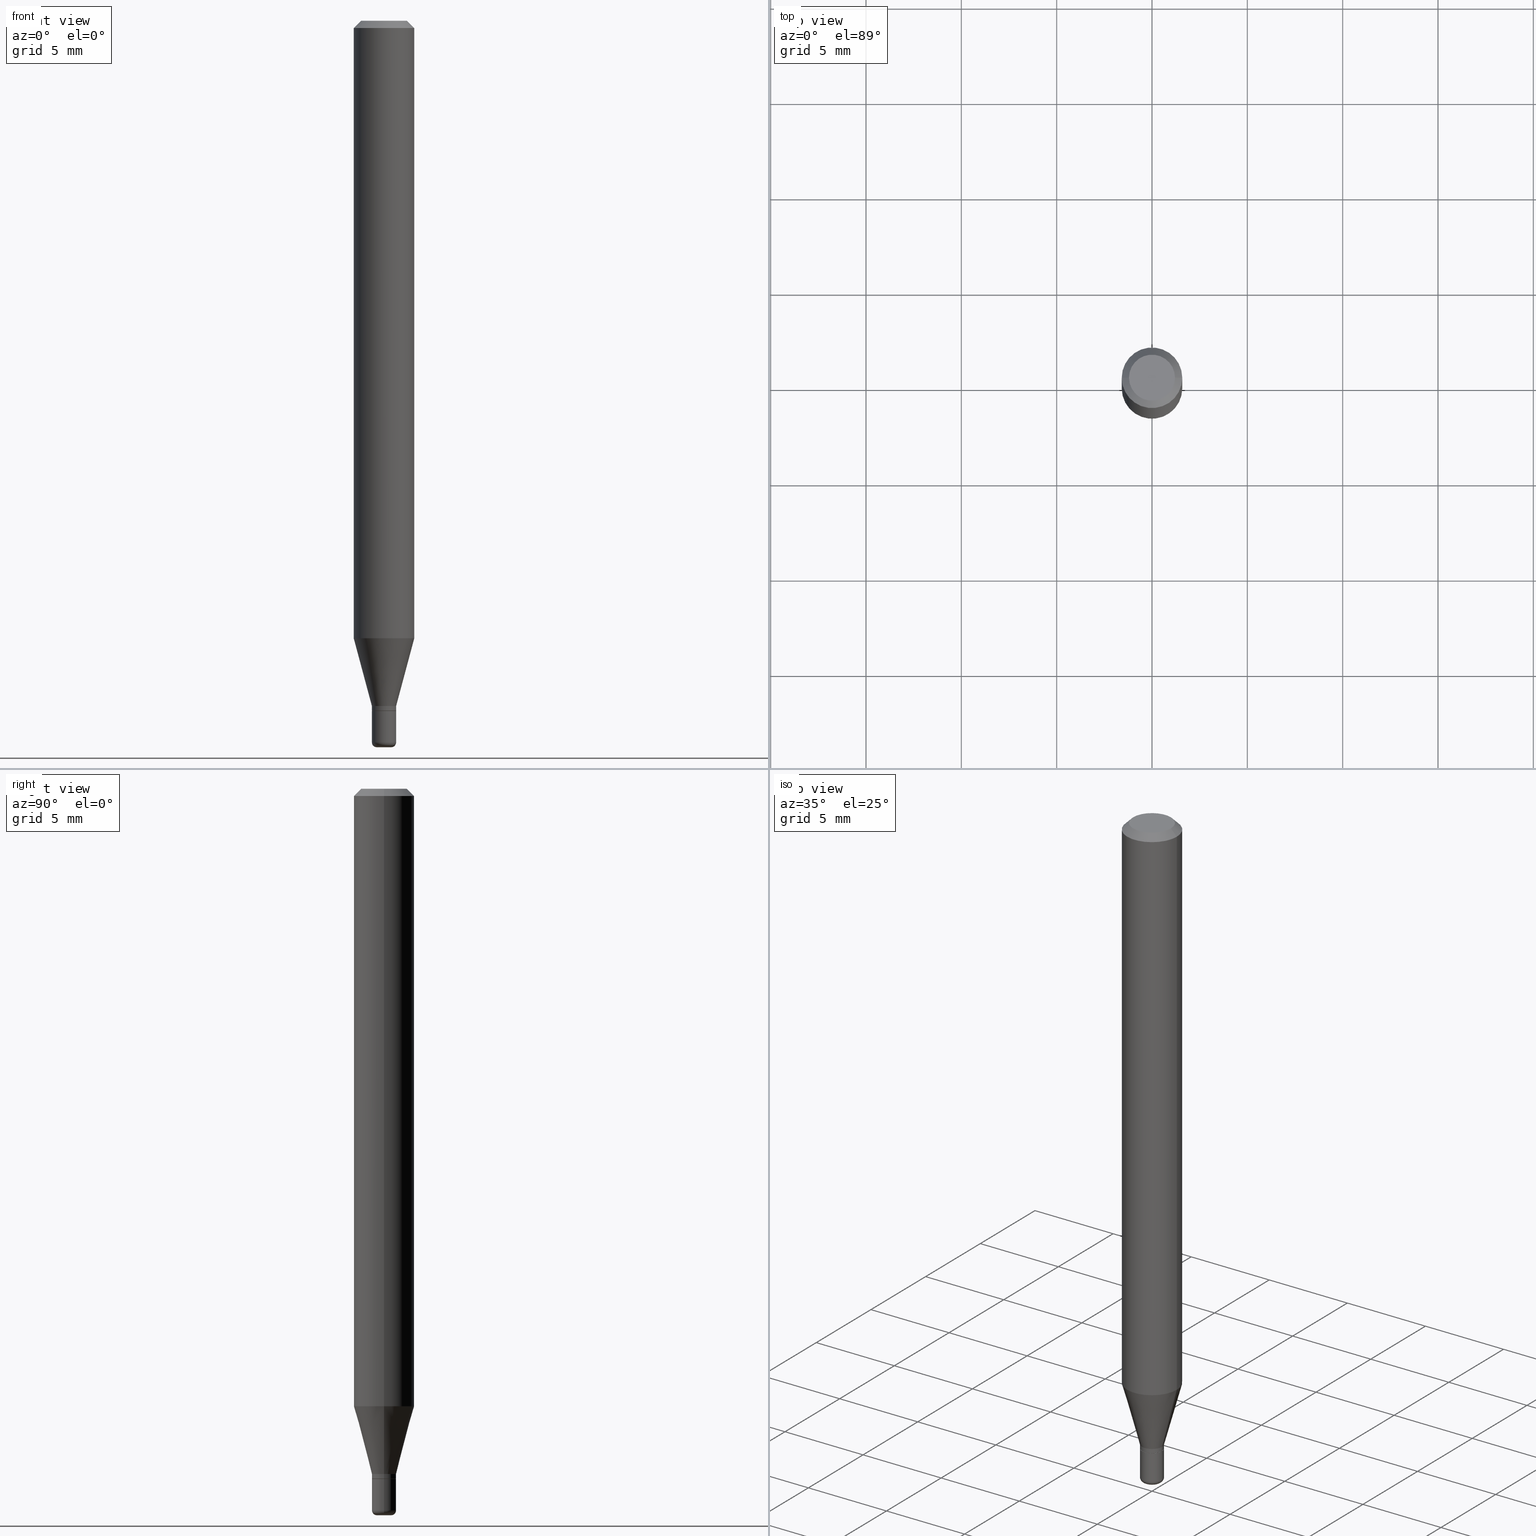
[diagram: canonical four-view strip — front | top / right | iso, engineering-drawing reading convention]
A machine part, canonical four-view strip (front | top / right | iso — engineering-drawing reading convention). The complete STEP part file that produces these views, byte-faithful:
ISO-10303-21;
HEADER;
FILE_DESCRIPTION (( 'STEP AP203' ),
    '1' );
FILE_NAME ('09148.STEP',
    '2024-02-29T22:40:19',
    ( '' ),
    ( '' ),
    'SwSTEP 2.0',
    'SolidWorks 2023',
    '' );
FILE_SCHEMA (( 'CONFIG_CONTROL_DESIGN' ));
ENDSEC;

DATA;
#1 = PRODUCT ( '09148', '09148', '', ( #185 ) ) ;
#2 = CARTESIAN_POINT ( 'NONE',  ( 3.484793048813820547E-29, -4.975360907851483175E-15, -1.425000000000000266 ) ) ;
#3 = FACE_OUTER_BOUND ( 'NONE', #350, .T. ) ;
#4 = EDGE_CURVE ( 'NONE', #430, #230, #403, .T. ) ;
#5 = ORIENTED_EDGE ( 'NONE', *, *, #426, .F. ) ;
#6 = LINE ( 'NONE', #12, #461 ) ;
#7 = CIRCLE ( 'NONE', #354, 0.01500000000000000465 ) ;
#8 = AXIS2_PLACEMENT_3D ( 'NONE', #299, #339, #62 ) ;
#9 = ORIENTED_EDGE ( 'NONE', *, *, #123, .F. ) ;
#10 = CARTESIAN_POINT ( 'NONE',  ( 1.745740669421915009E-16, 0.02499999999999502620, -1.425000000000000266 ) ) ;
#11 = ORIENTED_EDGE ( 'NONE', *, *, #110, .F. ) ;
#12 = CARTESIAN_POINT ( 'NONE',  ( -0.02449999999999996972, -4.801277937590258869E-15, -1.425000000000000266 ) ) ;
#13 = DIRECTION ( 'NONE',  ( 7.105427357601001859E-15, 1.000000000000000000, -3.491481338843145583E-15 ) ) ;
#14 = CYLINDRICAL_SURFACE ( 'NONE', #8, 0.02499999999999997710 ) ;
#15 = VECTOR ( 'NONE', #35, 39.37007874015748143 ) ;
#16 = VECTOR ( 'NONE', #86, 39.37007874015748143 ) ;
#17 = VERTEX_POINT ( 'NONE', #331 ) ;
#18 = CARTESIAN_POINT ( 'NONE',  ( 0.01500000000000000291, -5.307051635041582264E-15, -1.490000000000000213 ) ) ;
#19 = ORIENTED_EDGE ( 'NONE', *, *, #89, .T. ) ;
#20 = EDGE_CURVE ( 'NONE', #328, #513, #121, .T. ) ;
#21 = DIRECTION ( 'NONE',  ( -2.445468806185136597E-29, 3.491481338843145583E-15, 1.000000000000000000 ) ) ;
#22 = DIRECTION ( 'NONE',  ( -2.445468806185136597E-29, 3.491481338843145583E-15, 1.000000000000000000 ) ) ;
#23 = VECTOR ( 'NONE', #478, 39.37007874015748143 ) ;
#24 = DIRECTION ( 'NONE',  ( 1.000000000000000000, -6.982962677686262766E-15, 0.000000000000000000 ) ) ;
#25 = DIRECTION ( 'NONE',  ( -1.000000000000000000, 6.982962677686266711E-15, 0.000000000000000000 ) ) ;
#26 = EDGE_CURVE ( 'NONE', #303, #328, #374, .T. ) ;
#27 = PERSON_AND_ORGANIZATION_ROLE ( 'creator' ) ;
#28 = CARTESIAN_POINT ( 'NONE',  ( -0.06250000000000000000, -4.007717418978941084E-15, -1.275048094716166869 ) ) ;
#29 = APPROVAL_STATUS ( 'not_yet_approved' ) ;
#30 = ORIENTED_EDGE ( 'NONE', *, *, #110, .T. ) ;
#31 = PLANE ( 'NONE',  #232 ) ;
#32 = CIRCLE ( 'NONE', #120, 0.02499999999999998057 ) ;
#33 = PRODUCT_DEFINITION_FORMATION_WITH_SPECIFIED_SOURCE ( 'ANY', '', #1, .NOT_KNOWN. ) ;
#34 = ORIENTED_EDGE ( 'NONE', *, *, #92, .T. ) ;
#35 = DIRECTION ( 'NONE',  ( -2.445468806185136877E-29, 3.491481338843145188E-15, 1.000000000000000000 ) ) ;
#36 = DATE_AND_TIME ( #471, #281 ) ;
#37 = ADVANCED_FACE ( 'NONE', ( #406 ), #168, .F. ) ;
#38 = ORIENTED_EDGE ( 'NONE', *, *, #228, .F. ) ;
#39 = APPROVAL_ROLE ( '' ) ;
#40 = CONICAL_SURFACE ( 'NONE', #337, 0.06250000000000000000, 0.7853981633974488341 ) ;
#41 = ORIENTED_EDGE ( 'NONE', *, *, #92, .F. ) ;
#42 = AXIS2_PLACEMENT_3D ( 'NONE', #242, #487, #399 ) ;
#43 = CARTESIAN_POINT ( 'NONE',  ( -0.06250000000000000000, -1.808000214605762576E-15, -0.01499999999999970281 ) ) ;
#44 = ORIENTED_EDGE ( 'NONE', *, *, #60, .T. ) ;
#45 = APPROVAL ( #466, 'UNSPECIFIED' ) ;
#46 = VERTEX_POINT ( 'NONE', #209 ) ;
#47 = DIRECTION ( 'NONE',  ( 1.000000000000000000, -6.982962677686254878E-15, 0.000000000000000000 ) ) ;
#48 = DIRECTION ( 'NONE',  ( -0.7071067811866199593, 7.493145998870616062E-15, 0.7071067811864750752 ) ) ;
#49 = AXIS2_PLACEMENT_3D ( 'NONE', #267, #72, #70 ) ;
#50 = APPROVAL_PERSON_ORGANIZATION ( #268, #438, #177 ) ;
#51 = DIRECTION ( 'NONE',  ( 1.000000000000000000, -6.982962677686265922E-15, 0.000000000000000000 ) ) ;
#52 = DIRECTION ( 'NONE',  ( -1.000000000000000000, 6.982962677686265922E-15, -4.876176775795935793E-29 ) ) ;
#53 = CARTESIAN_POINT ( 'NONE',  ( -6.680649051745406845E-45, 9.538196290434862081E-31, 2.731847993664263218E-16 ) ) ;
#54 = APPLICATION_CONTEXT ( 'configuration controlled 3d designs of mechanical parts and assemblies' ) ;
#55 = CIRCLE ( 'NONE', #144, 0.02449999999999996972 ) ;
#56 =( GEOMETRIC_REPRESENTATION_CONTEXT ( 3 ) GLOBAL_UNCERTAINTY_ASSIGNED_CONTEXT ( ( #468 ) ) GLOBAL_UNIT_ASSIGNED_CONTEXT ( ( #494, #253, #214 ) ) REPRESENTATION_CONTEXT ( 'NONE', 'WORKASPACE' ) );
#57 = EDGE_CURVE ( 'NONE', #479, #391, #165, .T. ) ;
#58 = ORIENTED_EDGE ( 'NONE', *, *, #410, .F. ) ;
#59 = ORIENTED_EDGE ( 'NONE', *, *, #218, .T. ) ;
#60 = EDGE_CURVE ( 'NONE', #250, #358, #205, .T. ) ;
#61 = DIRECTION ( 'NONE',  ( 1.000000000000000000, -6.982962677686282488E-15, 0.000000000000000000 ) ) ;
#62 = DIRECTION ( 'NONE',  ( 1.000000000000000000, -6.982962677686265922E-15, 4.876176775795935793E-29 ) ) ;
#63 = DIRECTION ( 'NONE',  ( 1.000000000000000000, -6.982962677686260400E-15, 0.000000000000000000 ) ) ;
#64 = DIRECTION ( 'NONE',  ( 1.000000000000000000, -6.982962677686261977E-15, 0.000000000000000000 ) ) ;
#65 = DIRECTION ( 'NONE',  ( -2.445468806185136877E-29, 3.491481338843145188E-15, 1.000000000000000000 ) ) ;
#66 = CARTESIAN_POINT ( 'NONE',  ( 3.484793048813820547E-29, -4.975360907851483175E-15, -1.425000000000000266 ) ) ;
#67 = EDGE_CURVE ( 'NONE', #106, #358, #439, .T. ) ;
#68 = PERSON_AND_ORGANIZATION ( #486, #74 ) ;
#69 = ORIENTED_EDGE ( 'NONE', *, *, #67, .F. ) ;
#70 = DIRECTION ( 'NONE',  ( 1.000000000000000000, -6.982962677686269866E-15, 4.883557194083113462E-29 ) ) ;
#71 = EDGE_LOOP ( 'NONE', ( #196, #111, #93, #169 ) ) ;
#72 = DIRECTION ( 'NONE',  ( -2.445468806185136597E-29, 3.491481338843145583E-15, 1.000000000000000000 ) ) ;
#73 = AXIS2_PLACEMENT_3D ( 'NONE', #511, #98, #176 ) ;
#74 = ORGANIZATION ( 'UNSPECIFIED', 'UNSPECIFIED', '' ) ;
#75 = EDGE_LOOP ( 'NONE', ( #132, #160, #361, #187 ) ) ;
#76 = PERSON_AND_ORGANIZATION ( #486, #74 ) ;
#77 = PRODUCT_DEFINITION_SHAPE ( 'NONE', 'NONE',  #330 ) ;
#78 = EDGE_LOOP ( 'NONE', ( #364, #34, #30, #238 ) ) ;
#79 = DIRECTION ( 'NONE',  ( 2.445468806185136597E-29, -3.491481338843145583E-15, -1.000000000000000000 ) ) ;
#80 = AXIS2_PLACEMENT_3D ( 'NONE', #10, #213, #52 ) ;
#81 = AXIS2_PLACEMENT_3D ( 'NONE', #332, #137, #493 ) ;
#82 = DIRECTION ( 'NONE',  ( 1.000000000000000000, -6.982962677686265922E-15, 4.876176775795935793E-29 ) ) ;
#83 = EDGE_LOOP ( 'NONE', ( #277, #348, #38, #505 ) ) ;
#84 = CARTESIAN_POINT ( 'NONE',  ( -0.02500000000000000139, -4.911198367423860436E-15, -1.425000000000000266 ) ) ;
#85 = CARTESIAN_POINT ( 'NONE',  ( 3.668203209277632395E-31, -5.237222008264614861E-17, -0.01499999999999970281 ) ) ;
#86 = DIRECTION ( 'NONE',  ( 0.7071067811866199593, -2.468850131083015945E-15, 0.7071067811864750752 ) ) ;
#87 = ORIENTED_EDGE ( 'NONE', *, *, #279, .T. ) ;
#88 = CARTESIAN_POINT ( 'NONE',  ( 0.02499999999999994588, -5.376881261818443984E-15, -1.490000000000000213 ) ) ;
#89 = EDGE_CURVE ( 'NONE', #358, #106, #497, .T. ) ;
#90 = FACE_OUTER_BOUND ( 'NONE', #83, .T. ) ;
#91 = CARTESIAN_POINT ( 'NONE',  ( 3.668203209277632395E-31, -5.237222008264614861E-17, -0.01499999999999970281 ) ) ;
#92 = EDGE_CURVE ( 'NONE', #248, #513, #32, .T. ) ;
#93 = ORIENTED_EDGE ( 'NONE', *, *, #274, .F. ) ;
#94 = LENGTH_MEASURE_WITH_UNIT ( LENGTH_MEASURE( 0.02539999999999999897 ), #371 );
#95 = CC_DESIGN_PERSON_AND_ORGANIZATION_ASSIGNMENT ( #188, #512, ( #33 ) ) ;
#96 = AXIS2_PLACEMENT_3D ( 'NONE', #285, #246, #101 ) ;
#97 = CARTESIAN_POINT ( 'NONE',  ( 0.01500000000000000465, -5.341966448430012335E-15, -1.500000000000000222 ) ) ;
#98 = DIRECTION ( 'NONE',  ( -2.438088387897960049E-29, 3.491481338843145188E-15, 1.000000000000000000 ) ) ;
#99 = CARTESIAN_POINT ( 'NONE',  ( 3.643748521215853910E-29, -5.202307194876288105E-15, -1.490000000000000213 ) ) ;
#100 = DIRECTION ( 'NONE',  ( 0.2588190451025205174, 1.565188264969628476E-15, 0.9659258262890684232 ) ) ;
#101 = DIRECTION ( 'NONE',  ( 1.000000000000000000, -6.982962677686261977E-15, 0.000000000000000000 ) ) ;
#102 = ADVANCED_FACE ( 'NONE', ( #372 ), #223, .T. ) ;
#103 = CARTESIAN_POINT ( 'NONE',  ( -0.02499999999999994588, -4.911198367423860436E-15, -1.490000000000000213 ) ) ;
#104 = AXIS2_PLACEMENT_3D ( 'NONE', #327, #117, #51 ) ;
#105 = CONICAL_SURFACE ( 'NONE', #166, 0.06250000000000000000, 0.7853981633974488341 ) ;
#106 = VERTEX_POINT ( 'NONE', #170 ) ;
#107 = CARTESIAN_POINT ( 'NONE',  ( 0.02500000000000000139, -5.149934974793639843E-15, -1.425000000000000266 ) ) ;
#108 = ORIENTED_EDGE ( 'NONE', *, *, #335, .T. ) ;
#109 = DIRECTION ( 'NONE',  ( -2.445468806185136597E-29, 3.491481338843145583E-15, 1.000000000000000000 ) ) ;
#110 = EDGE_CURVE ( 'NONE', #513, #17, #260, .T. ) ;
#111 = ORIENTED_EDGE ( 'NONE', *, *, #496, .T. ) ;
#112 = PERSON_AND_ORGANIZATION ( #486, #74 ) ;
#113 = CIRCLE ( 'NONE', #128, 0.02500000000000000139 ) ;
#114 = ORIENTED_EDGE ( 'NONE', *, *, #20, .T. ) ;
#115 = ADVANCED_FACE ( 'NONE', ( #456 ), #31, .F. ) ;
#116 = ORIENTED_EDGE ( 'NONE', *, *, #57, .F. ) ;
#117 = DIRECTION ( 'NONE',  ( -2.445468806185136597E-29, 3.491481338843145583E-15, 1.000000000000000000 ) ) ;
#118 = DIMENSIONAL_EXPONENTS ( 1.000000000000000000, 0.000000000000000000, 0.000000000000000000, 0.000000000000000000, 0.000000000000000000, 0.000000000000000000, 0.000000000000000000 ) ;
#119 = CARTESIAN_POINT ( 'NONE',  ( 3.460338360751968441E-29, -4.940446094463050737E-15, -1.415000000000000036 ) ) ;
#120 = AXIS2_PLACEMENT_3D ( 'NONE', #453, #244, #216 ) ;
#121 = LINE ( 'NONE', #442, #173 ) ;
#122 = FACE_OUTER_BOUND ( 'NONE', #510, .T. ) ;
#123 = EDGE_CURVE ( 'NONE', #488, #389, #472, .T. ) ;
#124 = CARTESIAN_POINT ( 'NONE',  ( 0.02449999999999996972, -5.146443493454796836E-15, -1.425000000000000266 ) ) ;
#125 = ORIENTED_EDGE ( 'NONE', *, *, #123, .T. ) ;
#126 = DIRECTION ( 'NONE',  ( -2.445468806185136597E-29, 3.491481338843145583E-15, 1.000000000000000000 ) ) ;
#127 = EDGE_LOOP ( 'NONE', ( #142, #517 ) ) ;
#128 = AXIS2_PLACEMENT_3D ( 'NONE', #2, #204, #322 ) ;
#129 = DIRECTION ( 'NONE',  ( 1.000000000000000000, -6.982962677686266711E-15, 0.000000000000000000 ) ) ;
#130 = FACE_OUTER_BOUND ( 'NONE', #75, .T. ) ;
#131 = DIRECTION ( 'NONE',  ( -6.982962677686266711E-15, -1.000000000000000000, 3.491481338843145583E-15 ) ) ;
#132 = ORIENTED_EDGE ( 'NONE', *, *, #335, .F. ) ;
#133 = CARTESIAN_POINT ( 'NONE',  ( -0.01500000000000000465, -5.077656054418483766E-15, -1.500000000000000222 ) ) ;
#134 = DIRECTION ( 'NONE',  ( -2.445468806185136597E-29, 3.491481338843145583E-15, 1.000000000000000000 ) ) ;
#135 = CIRCLE ( 'NONE', #287, 0.02449999999999996972 ) ;
#136 = LOCAL_TIME ( 17, 40, 19.00000000000000000, #433 ) ;
#137 = DIRECTION ( 'NONE',  ( -2.445468806185136597E-29, 3.491481338843145583E-15, 1.000000000000000000 ) ) ;
#138 = DIRECTION ( 'NONE',  ( -2.445468806185136597E-29, 3.491481338843145583E-15, 1.000000000000000000 ) ) ;
#139 = CARTESIAN_POINT ( 'NONE',  ( 0.000000000000000000, 0.000000000000000000, 0.000000000000000000 ) ) ;
#140 = DIRECTION ( 'NONE',  ( 1.000000000000000000, -6.982962677686260400E-15, 0.000000000000000000 ) ) ;
#141 = APPROVAL_DATE_TIME ( #36, #45 ) ;
#142 = ORIENTED_EDGE ( 'NONE', *, *, #315, .F. ) ;
#143 = FACE_OUTER_BOUND ( 'NONE', #385, .T. ) ;
#144 = AXIS2_PLACEMENT_3D ( 'NONE', #66, #224, #378 ) ;
#145 = COORDINATED_UNIVERSAL_TIME_OFFSET ( 5, 0, .BEHIND. ) ;
#146 = EDGE_CURVE ( 'NONE', #391, #215, #195, .T. ) ;
#147 = ORIENTED_EDGE ( 'NONE', *, *, #89, .F. ) ;
#148 = FACE_OUTER_BOUND ( 'NONE', #127, .T. ) ;
#149 = PERSON_AND_ORGANIZATION ( #486, #74 ) ;
#150 = ORIENTED_EDGE ( 'NONE', *, *, #293, .T. ) ;
#151 = EDGE_LOOP ( 'NONE', ( #9, #275, #189, #360 ) ) ;
#152 = DATE_AND_TIME ( #234, #404 ) ;
#153 = CIRCLE ( 'NONE', #420, 0.04750000000000000749 ) ;
#154 = CIRCLE ( 'NONE', #96, 0.02499999999999997363 ) ;
#155 = EDGE_CURVE ( 'NONE', #430, #479, #7, .T. ) ;
#156 = CARTESIAN_POINT ( 'NONE',  ( 3.484793048813820547E-29, -4.975360907851483175E-15, -1.425000000000000266 ) ) ;
#157 = CARTESIAN_POINT ( 'NONE',  ( 3.668203209277632395E-31, -5.237222008264614861E-17, -0.01499999999999970281 ) ) ;
#158 = DIRECTION ( 'NONE',  ( 0.7071067811865479058, -7.319954787623257623E-15, -0.7071067811865471286 ) ) ;
#159 = CARTESIAN_POINT ( 'NONE',  ( 3.582686580359766038E-29, -5.359686688179453325E-15, -1.500000000000000222 ) ) ;
#160 = ORIENTED_EDGE ( 'NONE', *, *, #237, .T. ) ;
#161 = CC_DESIGN_DATE_AND_TIME_ASSIGNMENT ( #377, #507, ( #330 ) ) ;
#162 = ORIENTED_EDGE ( 'NONE', *, *, #57, .T. ) ;
#163 = DIRECTION ( 'NONE',  ( -2.445468806185136597E-29, 3.491481338843145583E-15, 1.000000000000000000 ) ) ;
#164 = ADVANCED_FACE ( 'NONE', ( #143 ), #219, .T. ) ;
#165 = CIRCLE ( 'NONE', #270, 0.009999999999999944697 ) ;
#166 = AXIS2_PLACEMENT_3D ( 'NONE', #157, #79, #490 ) ;
#167 = CC_DESIGN_PERSON_AND_ORGANIZATION_ASSIGNMENT ( #76, #388, ( #33 ) ) ;
#168 = PLANE ( 'NONE',  #80 ) ;
#169 = ORIENTED_EDGE ( 'NONE', *, *, #146, .F. ) ;
#170 = CARTESIAN_POINT ( 'NONE',  ( 0.06250000000000000000, -4.888073874380378612E-16, -0.01499999999999970281 ) ) ;
#171 = LINE ( 'NONE', #409, #306 ) ;
#172 = FACE_OUTER_BOUND ( 'NONE', #78, .T. ) ;
#173 = VECTOR ( 'NONE', #489, 39.37007874015748143 ) ;
#174 = AXIS2_PLACEMENT_3D ( 'NONE', #220, #258, #373 ) ;
#175 = CARTESIAN_POINT ( 'NONE',  ( 0.000000000000000000, 0.000000000000000000, 0.000000000000000000 ) ) ;
#176 = DIRECTION ( 'NONE',  ( 1.000000000000000000, -6.982962677686265922E-15, 4.876176775795935793E-29 ) ) ;
#177 = APPROVAL_ROLE ( '' ) ;
#178 = DIRECTION ( 'NONE',  ( -1.000000000000000000, 6.982962677686265922E-15, -4.876176775795935793E-29 ) ) ;
#179 = CARTESIAN_POINT ( 'NONE',  ( 0.000000000000000000, 0.000000000000000000, 0.000000000000000000 ) ) ;
#180 = EDGE_CURVE ( 'NONE', #389, #358, #227, .T. ) ;
#181 = ORIENTED_EDGE ( 'NONE', *, *, #228, .T. ) ;
#182 = CARTESIAN_POINT ( 'NONE',  ( -6.680649051745406845E-45, 9.538196290434862081E-31, 2.731847993664263218E-16 ) ) ;
#183 = AXIS2_PLACEMENT_3D ( 'NONE', #254, #138, #300 ) ;
#184 = AXIS2_PLACEMENT_3D ( 'NONE', #139, #419, #251 ) ;
#185 = MECHANICAL_CONTEXT ( 'NONE', #200, 'mechanical' ) ;
#186 = APPROVAL ( #514, 'UNSPECIFIED' ) ;
#187 = ORIENTED_EDGE ( 'NONE', *, *, #26, .F. ) ;
#188 = PERSON_AND_ORGANIZATION ( #486, #74 ) ;
#189 = ORIENTED_EDGE ( 'NONE', *, *, #67, .T. ) ;
#190 = PERSON_AND_ORGANIZATION_ROLE ( 'classification_officer' ) ;
#191 = ORIENTED_EDGE ( 'NONE', *, *, #408, .F. ) ;
#192 = ADVANCED_FACE ( 'NONE', ( #172 ), #323, .T. ) ;
#193 = CIRCLE ( 'NONE', #491, 0.02499999999999994588 ) ;
#194 = CC_DESIGN_APPROVAL ( #438, ( #247 ) ) ;
#195 = LINE ( 'NONE', #357, #15 ) ;
#196 = ORIENTED_EDGE ( 'NONE', *, *, #312, .T. ) ;
#197 = CC_DESIGN_PERSON_AND_ORGANIZATION_ASSIGNMENT ( #149, #190, ( #247 ) ) ;
#198 = FACE_OUTER_BOUND ( 'NONE', #151, .T. ) ;
#199 = CARTESIAN_POINT ( 'NONE',  ( -0.04750000000000000749, 3.578768372314221353E-16, 2.731847993664239060E-16 ) ) ;
#200 = APPLICATION_CONTEXT ( 'configuration controlled 3d designs of mechanical parts and assemblies' ) ;
#201 = DIRECTION ( 'NONE',  ( 1.000000000000000000, -6.982962677686260400E-15, 0.000000000000000000 ) ) ;
#202 = AXIS2_PLACEMENT_3D ( 'NONE', #340, #503, #140 ) ;
#203 = LOCAL_TIME ( 17, 40, 19.00000000000000000, #145 ) ;
#204 = DIRECTION ( 'NONE',  ( -2.445468806185136597E-29, 3.491481338843145583E-15, 1.000000000000000000 ) ) ;
#205 = LINE ( 'NONE', #414, #296 ) ;
#206 = ADVANCED_FACE ( 'NONE', ( #386 ), #428, .F. ) ;
#207 = ORIENTED_EDGE ( 'NONE', *, *, #315, .T. ) ;
#208 = LINE ( 'NONE', #325, #324 ) ;
#209 = CARTESIAN_POINT ( 'NONE',  ( -0.02449999999999996972, -4.798628710416148457E-15, -1.425000000000000266 ) ) ;
#210 = EDGE_CURVE ( 'NONE', #467, #46, #135, .T. ) ;
#211 = AXIS2_PLACEMENT_3D ( 'NONE', #85, #134, #129 ) ;
#212 = APPROVAL_PERSON_ORGANIZATION ( #307, #45, #39 ) ;
#213 = DIRECTION ( 'NONE',  ( 2.438088387897960049E-29, -3.491481338843145188E-15, -1.000000000000000000 ) ) ;
#214 =( NAMED_UNIT ( * ) SI_UNIT ( $, .STERADIAN. ) SOLID_ANGLE_UNIT ( ) );
#215 = VERTEX_POINT ( 'NONE', #107 ) ;
#216 = DIRECTION ( 'NONE',  ( 1.000000000000000000, -6.982962677686260400E-15, 0.000000000000000000 ) ) ;
#217 = APPLICATION_PROTOCOL_DEFINITION ( 'international standard', 'config_control_design', 1994, #200 ) ;
#218 = EDGE_CURVE ( 'NONE', #250, #17, #431, .T. ) ;
#219 = CYLINDRICAL_SURFACE ( 'NONE', #280, 0.02499999999999997363 ) ;
#220 = CARTESIAN_POINT ( 'NONE',  ( 3.484793048813820547E-29, -4.975360907851483175E-15, -1.425000000000000266 ) ) ;
#221 = ADVANCED_FACE ( 'NONE', ( #458 ), #40, .T. ) ;
#222 = CARTESIAN_POINT ( 'NONE',  ( 3.668203209277704895E-29, -5.237222008264718177E-15, -1.500000000000000222 ) ) ;
#223 = TOROIDAL_SURFACE ( 'NONE', #49, 0.01500000000000000291, 0.009999999999999946432 ) ;
#224 = DIRECTION ( 'NONE',  ( -2.445468806185136597E-29, 3.491481338843145583E-15, 1.000000000000000000 ) ) ;
#225 = PERSON_AND_ORGANIZATION ( #486, #74 ) ;
#226 = ORIENTED_EDGE ( 'NONE', *, *, #210, .T. ) ;
#227 = LINE ( 'NONE', #506, #305 ) ;
#228 = EDGE_CURVE ( 'NONE', #513, #248, #446, .T. ) ;
#229 = CALENDAR_DATE ( 2024, 29, 2 ) ;
#230 = VERTEX_POINT ( 'NONE', #103 ) ;
#231 = CARTESIAN_POINT ( 'NONE',  ( 3.484793048813820547E-29, -4.975360907851483175E-15, -1.425000000000000266 ) ) ;
#232 = AXIS2_PLACEMENT_3D ( 'NONE', #257, #499, #178 ) ;
#233 = AXIS2_PLACEMENT_3D ( 'NONE', #179, #427, #313 ) ;
#234 = CALENDAR_DATE ( 2024, 29, 2 ) ;
#235 = EDGE_LOOP ( 'NONE', ( #269, #393 ) ) ;
#236 = SECURITY_CLASSIFICATION_LEVEL ( 'unclassified' ) ;
#237 = EDGE_CURVE ( 'NONE', #46, #467, #55, .T. ) ;
#238 = ORIENTED_EDGE ( 'NONE', *, *, #218, .F. ) ;
#239 = AXIS2_PLACEMENT_3D ( 'NONE', #483, #13, #369 ) ;
#240 = AXIS2_PLACEMENT_3D ( 'NONE', #119, #126, #201 ) ;
#241 = CARTESIAN_POINT ( 'NONE',  ( 0.000000000000000000, 0.000000000000000000, 0.000000000000000000 ) ) ;
#242 = CARTESIAN_POINT ( 'NONE',  ( 0.000000000000000000, 0.000000000000000000, 0.000000000000000000 ) ) ;
#243 = CARTESIAN_POINT ( 'NONE',  ( -0.02499999999999997363, -4.795979483242037256E-15, -1.424500000000000322 ) ) ;
#244 = DIRECTION ( 'NONE',  ( -2.445468806185136597E-29, 3.491481338843145583E-15, 1.000000000000000000 ) ) ;
#245 = AXIS2_PLACEMENT_3D ( 'NONE', #159, #284, #82 ) ;
#246 = DIRECTION ( 'NONE',  ( -2.445468806185136597E-29, 3.491481338843145583E-15, 1.000000000000000000 ) ) ;
#247 = SECURITY_CLASSIFICATION ( '', '', #236 ) ;
#248 = VERTEX_POINT ( 'NONE', #342 ) ;
#249 = CARTESIAN_POINT ( 'NONE',  ( 3.484793048813820547E-29, -4.975360907851483175E-15, -1.425000000000000266 ) ) ;
#250 = VERTEX_POINT ( 'NONE', #28 ) ;
#251 = DIRECTION ( 'NONE',  ( 1.000000000000000000, -6.982962677686265922E-15, 4.876176775795935232E-29 ) ) ;
#252 = DIRECTION ( 'NONE',  ( 1.000000000000000000, -6.982962677686266711E-15, 0.000000000000000000 ) ) ;
#253 =( NAMED_UNIT ( * ) PLANE_ANGLE_UNIT ( ) SI_UNIT ( $, .RADIAN. ) );
#254 = CARTESIAN_POINT ( 'NONE',  ( 3.118090342014177952E-29, -4.451806628829005278E-15, -1.275048094716166869 ) ) ;
#255 = CARTESIAN_POINT ( 'NONE',  ( 3.118090342014177952E-29, -4.451806628829005278E-15, -1.275048094716166869 ) ) ;
#256 = CC_DESIGN_PERSON_AND_ORGANIZATION_ASSIGNMENT ( #68, #302, ( #1 ) ) ;
#257 = CARTESIAN_POINT ( 'NONE',  ( 3.316907271900976589E-16, 0.04750000000000000749, -2.925296391183627249E-17 ) ) ;
#258 = DIRECTION ( 'NONE',  ( -2.445468806185136597E-29, 3.491481338843145583E-15, 1.000000000000000000 ) ) ;
#259 = ADVANCED_FACE ( 'NONE', ( #148 ), #304, .F. ) ;
#260 = LINE ( 'NONE', #298, #454 ) ;
#261 = CIRCLE ( 'NONE', #104, 0.01500000000000000465 ) ;
#262 = CIRCLE ( 'NONE', #482, 0.06250000000000000000 ) ;
#263 = CALENDAR_DATE ( 2024, 29, 2 ) ;
#264 = ORIENTED_EDGE ( 'NONE', *, *, #60, .F. ) ;
#265 = DIRECTION ( 'NONE',  ( 2.445468806185136597E-29, -3.491481338843145583E-15, -1.000000000000000000 ) ) ;
#266 = ORIENTED_EDGE ( 'NONE', *, *, #4, .F. ) ;
#267 = CARTESIAN_POINT ( 'NONE',  ( 3.643748521215853910E-29, -5.202307194876288105E-15, -1.490000000000000213 ) ) ;
#268 = PERSON_AND_ORGANIZATION ( #486, #74 ) ;
#269 = ORIENTED_EDGE ( 'NONE', *, *, #274, .T. ) ;
#270 = AXIS2_PLACEMENT_3D ( 'NONE', #18, #131, #291 ) ;
#271 = CC_DESIGN_APPROVAL ( #186, ( #33 ) ) ;
#272 = APPROVAL_PERSON_ORGANIZATION ( #112, #186, #516 ) ;
#273 = COORDINATED_UNIVERSAL_TIME_OFFSET ( 5, 0, .BEHIND. ) ;
#274 = EDGE_CURVE ( 'NONE', #215, #286, #113, .T. ) ;
#275 = ORIENTED_EDGE ( 'NONE', *, *, #402, .T. ) ;
#276 = DIRECTION ( 'NONE',  ( -2.445468806185136597E-29, 3.491481338843145583E-15, 1.000000000000000000 ) ) ;
#277 = ORIENTED_EDGE ( 'NONE', *, *, #416, .T. ) ;
#278 = DIRECTION ( 'NONE',  ( 1.000000000000000000, -6.982962677686282488E-15, 0.000000000000000000 ) ) ;
#279 = EDGE_CURVE ( 'NONE', #248, #250, #359, .T. ) ;
#280 = AXIS2_PLACEMENT_3D ( 'NONE', #423, #460, #309 ) ;
#281 = LOCAL_TIME ( 17, 40, 19.00000000000000000, #273 ) ;
#282 = CYLINDRICAL_SURFACE ( 'NONE', #42, 0.06250000000000000000 ) ;
#283 = ORIENTED_EDGE ( 'NONE', *, *, #146, .T. ) ;
#284 = DIRECTION ( 'NONE',  ( -2.438088387897960049E-29, 3.491481338843145188E-15, 1.000000000000000000 ) ) ;
#285 = CARTESIAN_POINT ( 'NONE',  ( 3.483570314410727746E-29, -4.973615167182062460E-15, -1.424500000000000322 ) ) ;
#286 = VERTEX_POINT ( 'NONE', #84 ) ;
#287 = AXIS2_PLACEMENT_3D ( 'NONE', #231, #375, #61 ) ;
#288 = DIRECTION ( 'NONE',  ( -2.445468806185136597E-29, 3.491481338843145583E-15, 1.000000000000000000 ) ) ;
#289 = ADVANCED_FACE ( 'NONE', ( #122 ), #443, .T. ) ;
#290 = CARTESIAN_POINT ( 'NONE',  ( 0.02499999999999998057, -5.115020161405207405E-15, -1.415000000000000036 ) ) ;
#291 = DIRECTION ( 'NONE',  ( 1.000000000000000000, -6.982962677686274599E-15, 0.000000000000000000 ) ) ;
#292 = DIRECTION ( 'NONE',  ( -2.445468806185136597E-29, 3.491481338843145583E-15, 1.000000000000000000 ) ) ;
#293 = EDGE_CURVE ( 'NONE', #389, #488, #153, .T. ) ;
#294 = DIRECTION ( 'NONE',  ( -2.445468806185136877E-29, 3.491481338843145188E-15, 1.000000000000000000 ) ) ;
#295 = ADVANCED_BREP_SHAPE_REPRESENTATION ( '09148', ( #477, #317, #233 ), #56 ) ;
#296 = VECTOR ( 'NONE', #451, 39.37007874015748143 ) ;
#297 = TOROIDAL_SURFACE ( 'NONE', #81, 0.01500000000000000291, 0.009999999999999946432 ) ;
#298 = CARTESIAN_POINT ( 'NONE',  ( 0.02499999999999998057, -5.115020161405207405E-15, -1.415000000000000036 ) ) ;
#299 = CARTESIAN_POINT ( 'NONE',  ( 0.000000000000000000, 0.000000000000000000, 0.000000000000000000 ) ) ;
#300 = DIRECTION ( 'NONE',  ( 1.000000000000000000, -6.982962677686262766E-15, 0.000000000000000000 ) ) ;
#301 = CARTESIAN_POINT ( 'NONE',  ( 0.02449999999999996972, -5.146443493454796836E-15, -1.425000000000000266 ) ) ;
#302 = PERSON_AND_ORGANIZATION_ROLE ( 'design_owner' ) ;
#303 = VERTEX_POINT ( 'NONE', #243 ) ;
#304 = PLANE ( 'NONE',  #245 ) ;
#305 = VECTOR ( 'NONE', #417, 39.37007874015748143 ) ;
#306 = VECTOR ( 'NONE', #294, 39.37007874015748143 ) ;
#307 = PERSON_AND_ORGANIZATION ( #486, #74 ) ;
#308 = ORIENTED_EDGE ( 'NONE', *, *, #384, .F. ) ;
#309 = DIRECTION ( 'NONE',  ( 1.000000000000000000, -6.982962677686265922E-15, 4.876176775795935232E-29 ) ) ;
#310 = CALENDAR_DATE ( 2024, 29, 2 ) ;
#311 = ORIENTED_EDGE ( 'NONE', *, *, #496, .F. ) ;
#312 = EDGE_CURVE ( 'NONE', #391, #230, #193, .T. ) ;
#313 = DIRECTION ( 'NONE',  ( 1.000000000000000000, 0.000000000000000000, 0.000000000000000000 ) ) ;
#314 = AXIS2_PLACEMENT_3D ( 'NONE', #241, #329, #367 ) ;
#315 = EDGE_CURVE ( 'NONE', #479, #430, #261, .T. ) ;
#316 = APPROVAL_DATE_TIME ( #152, #438 ) ;
#317 = MANIFOLD_SOLID_BREP ( 'Body-Move/Copy2[2]', #345 ) ;
#318 = ORIENTED_EDGE ( 'NONE', *, *, #485, .F. ) ;
#319 = CARTESIAN_POINT ( 'NONE',  ( -0.02499999999999998057, -4.762810410523025533E-15, -1.415000000000000036 ) ) ;
#320 = ADVANCED_FACE ( 'NONE', ( #441 ), #509, .T. ) ;
#321 = EDGE_LOOP ( 'NONE', ( #476, #353, #464, #19 ) ) ;
#322 = DIRECTION ( 'NONE',  ( 1.000000000000000000, -6.982962677686254878E-15, 0.000000000000000000 ) ) ;
#323 = CONICAL_SURFACE ( 'NONE', #370, 0.02499999999999998057, 0.2617993877991491858 ) ;
#324 = VECTOR ( 'NONE', #484, 39.37007874015748143 ) ;
#325 = CARTESIAN_POINT ( 'NONE',  ( -0.02499999999999997710, 1.776356839400248838E-16, -1.229733772563725430E-30 ) ) ;
#326 = EDGE_LOOP ( 'NONE', ( #191, #381, #114, #41 ) ) ;
#327 = CARTESIAN_POINT ( 'NONE',  ( 3.668203209277704895E-29, -5.237222008264718177E-15, -1.500000000000000222 ) ) ;
#328 = VERTEX_POINT ( 'NONE', #401 ) ;
#329 = DIRECTION ( 'NONE',  ( -2.445468806185136597E-29, 3.491481338843145583E-15, 1.000000000000000000 ) ) ;
#330 = PRODUCT_DEFINITION ( 'UNKNOWN', '', #33, #418 ) ;
#331 = CARTESIAN_POINT ( 'NONE',  ( 0.06250000000000000000, -4.888241796184395369E-15, -1.275048094716166869 ) ) ;
#332 = CARTESIAN_POINT ( 'NONE',  ( 3.643748521215853910E-29, -5.202307194876288105E-15, -1.490000000000000213 ) ) ;
#333 = LINE ( 'NONE', #459, #387 ) ;
#334 = CARTESIAN_POINT ( 'NONE',  ( 0.04750000000000000749, -4.035134999187568762E-16, 2.731847993664288856E-16 ) ) ;
#335 = EDGE_CURVE ( 'NONE', #46, #303, #6, .T. ) ;
#336 = FACE_OUTER_BOUND ( 'NONE', #71, .T. ) ;
#337 = AXIS2_PLACEMENT_3D ( 'NONE', #465, #265, #25 ) ;
#338 = CARTESIAN_POINT ( 'NONE',  ( 3.460338360751968441E-29, -4.940446094463050737E-15, -1.415000000000000036 ) ) ;
#339 = DIRECTION ( 'NONE',  ( -2.445468806185136597E-29, 3.491481338843145583E-15, 1.000000000000000000 ) ) ;
#340 = CARTESIAN_POINT ( 'NONE',  ( 3.460338360751968441E-29, -4.940446094463050737E-15, -1.415000000000000036 ) ) ;
#341 = ORIENTED_EDGE ( 'NONE', *, *, #237, .F. ) ;
#342 = CARTESIAN_POINT ( 'NONE',  ( -0.02499999999999998057, -4.385263914750983308E-15, -1.415000000000000036 ) ) ;
#343 = ORIENTED_EDGE ( 'NONE', *, *, #485, .T. ) ;
#344 = DIRECTION ( 'NONE',  ( 1.000000000000000000, -6.982962677686265922E-15, 0.000000000000000000 ) ) ;
#345 = CLOSED_SHELL ( 'NONE', ( #435, #320, #356, #376, #351, #192, #289, #221, #115, #206, #449, #422 ) ) ;
#346 = CC_DESIGN_APPROVAL ( #45, ( #330 ) ) ;
#347 = APPROVAL_DATE_TIME ( #380, #186 ) ;
#348 = ORIENTED_EDGE ( 'NONE', *, *, #408, .T. ) ;
#349 = COORDINATED_UNIVERSAL_TIME_OFFSET ( 5, 0, .BEHIND. ) ;
#350 = EDGE_LOOP ( 'NONE', ( #515, #44, #69, #318 ) ) ;
#351 = ADVANCED_FACE ( 'NONE', ( #437 ), #412, .T. ) ;
#352 = COORDINATED_UNIVERSAL_TIME_OFFSET ( 5, 0, .BEHIND. ) ;
#353 = ORIENTED_EDGE ( 'NONE', *, *, #293, .F. ) ;
#354 = AXIS2_PLACEMENT_3D ( 'NONE', #222, #109, #344 ) ;
#355 = AXIS2_PLACEMENT_3D ( 'NONE', #249, #288, #47 ) ;
#356 = ADVANCED_FACE ( 'NONE', ( #198 ), #105, .T. ) ;
#357 = CARTESIAN_POINT ( 'NONE',  ( 0.02499999999999997363, -1.745740669421564705E-16, 1.219044193948982547E-30 ) ) ;
#358 = VERTEX_POINT ( 'NONE', #43 ) ;
#359 = LINE ( 'NONE', #319, #23 ) ;
#360 = ORIENTED_EDGE ( 'NONE', *, *, #180, .F. ) ;
#361 = ORIENTED_EDGE ( 'NONE', *, *, #410, .T. ) ;
#362 = DIRECTION ( 'NONE',  ( -2.445468806185136597E-29, 3.491481338843145583E-15, 1.000000000000000000 ) ) ;
#363 = LINE ( 'NONE', #124, #16 ) ;
#364 = ORIENTED_EDGE ( 'NONE', *, *, #279, .F. ) ;
#365 = ORIENTED_EDGE ( 'NONE', *, *, #312, .F. ) ;
#366 = ORIENTED_EDGE ( 'NONE', *, *, #155, .T. ) ;
#367 = DIRECTION ( 'NONE',  ( 1.000000000000000000, -6.982962677686266711E-15, 4.876176775795935793E-29 ) ) ;
#368 = FACE_OUTER_BOUND ( 'NONE', #424, .T. ) ;
#369 = DIRECTION ( 'NONE',  ( -1.000000000000000000, 7.105427357600964782E-15, 0.000000000000000000 ) ) ;
#370 = AXIS2_PLACEMENT_3D ( 'NONE', #338, #382, #63 ) ;
#371 =( LENGTH_UNIT ( ) NAMED_UNIT ( * ) SI_UNIT ( $, .METRE. ) );
#372 = FACE_OUTER_BOUND ( 'NONE', #397, .T. ) ;
#373 = DIRECTION ( 'NONE',  ( 1.000000000000000000, -6.982962677686282488E-15, 0.000000000000000000 ) ) ;
#374 = CIRCLE ( 'NONE', #481, 0.02499999999999997363 ) ;
#375 = DIRECTION ( 'NONE',  ( -2.445468806185136597E-29, 3.491481338843145583E-15, 1.000000000000000000 ) ) ;
#376 = ADVANCED_FACE ( 'NONE', ( #3 ), #282, .T. ) ;
#377 = DATE_AND_TIME ( #263, #136 ) ;
#378 = DIRECTION ( 'NONE',  ( 1.000000000000000000, -6.982962677686282488E-15, 0.000000000000000000 ) ) ;
#379 = CC_DESIGN_DATE_AND_TIME_ASSIGNMENT ( #390, #469, ( #247 ) ) ;
#380 = DATE_AND_TIME ( #229, #203 ) ;
#381 = ORIENTED_EDGE ( 'NONE', *, *, #26, .T. ) ;
#382 = DIRECTION ( 'NONE',  ( -2.445468806185136597E-29, 3.491481338843145583E-15, 1.000000000000000000 ) ) ;
#383 = APPLICATION_PROTOCOL_DEFINITION ( 'international standard', 'config_control_design', 1994, #54 ) ;
#384 = EDGE_CURVE ( 'NONE', #286, #215, #498, .T. ) ;
#385 = EDGE_LOOP ( 'NONE', ( #311, #502, #283, #308 ) ) ;
#386 = FACE_OUTER_BOUND ( 'NONE', #413, .T. ) ;
#387 = VECTOR ( 'NONE', #65, 39.37007874015748143 ) ;
#388 = PERSON_AND_ORGANIZATION_ROLE ( 'design_supplier' ) ;
#389 = VERTEX_POINT ( 'NONE', #199 ) ;
#390 = DATE_AND_TIME ( #310, #492 ) ;
#391 = VERTEX_POINT ( 'NONE', #88 ) ;
#392 = ORIENTED_EDGE ( 'NONE', *, *, #4, .T. ) ;
#393 = ORIENTED_EDGE ( 'NONE', *, *, #384, .T. ) ;
#394 = PRODUCT_RELATED_PRODUCT_CATEGORY ( 'detail', '', ( #1 ) ) ;
#395 = EDGE_LOOP ( 'NONE', ( #181, #87, #470, #11 ) ) ;
#396 = DIRECTION ( 'NONE',  ( -2.445468806185136597E-29, 3.491481338843145583E-15, 1.000000000000000000 ) ) ;
#397 = EDGE_LOOP ( 'NONE', ( #207, #392, #365, #116 ) ) ;
#398 = ORIENTED_EDGE ( 'NONE', *, *, #416, .F. ) ;
#399 = DIRECTION ( 'NONE',  ( 1.000000000000000000, -6.982962677686266711E-15, 4.876176775795935793E-29 ) ) ;
#400 = CARTESIAN_POINT ( 'NONE',  ( 3.483570314410727746E-29, -4.973615167182062460E-15, -1.424500000000000322 ) ) ;
#401 = CARTESIAN_POINT ( 'NONE',  ( 0.02499999999999997363, -5.148189234124219128E-15, -1.424500000000000322 ) ) ;
#402 = EDGE_CURVE ( 'NONE', #488, #106, #444, .T. ) ;
#403 = CIRCLE ( 'NONE', #239, 0.009999999999999944697 ) ;
#404 = LOCAL_TIME ( 17, 40, 19.00000000000000000, #352 ) ;
#405 = CARTESIAN_POINT ( 'NONE',  ( 0.06250000000000000000, -4.811533449433669144E-16, -0.01499999999999970281 ) ) ;
#406 = FACE_OUTER_BOUND ( 'NONE', #235, .T. ) ;
#407 = DIRECTION ( 'NONE',  ( 1.000000000000000000, -6.982962677686266711E-15, 4.852736867747365086E-29 ) ) ;
#408 = EDGE_CURVE ( 'NONE', #303, #248, #208, .T. ) ;
#409 = CARTESIAN_POINT ( 'NONE',  ( -0.02499999999999997363, 1.776356839400248591E-16, -1.229733772563725079E-30 ) ) ;
#410 = EDGE_CURVE ( 'NONE', #467, #328, #363, .T. ) ;
#411 = AXIS2_PLACEMENT_3D ( 'NONE', #182, #22, #425 ) ;
#412 = CONICAL_SURFACE ( 'NONE', #240, 0.02499999999999998057, 0.2617993877991491858 ) ;
#413 = EDGE_LOOP ( 'NONE', ( #434, #341 ) ) ;
#414 = CARTESIAN_POINT ( 'NONE',  ( -0.06250000000000000000, 4.440892098500626162E-16, -3.074334431409316114E-30 ) ) ;
#415 = DIRECTION ( 'NONE',  ( -2.445468806185136597E-29, 3.491481338843145583E-15, 1.000000000000000000 ) ) ;
#416 = EDGE_CURVE ( 'NONE', #328, #303, #154, .T. ) ;
#417 = DIRECTION ( 'NONE',  ( -0.7071067811865479058, 2.468850131082261005E-15, -0.7071067811865471286 ) ) ;
#418 = DESIGN_CONTEXT ( 'detailed design', #54, 'design' ) ;
#419 = DIRECTION ( 'NONE',  ( -2.445468806185136597E-29, 3.491481338843145583E-15, 1.000000000000000000 ) ) ;
#420 = AXIS2_PLACEMENT_3D ( 'NONE', #53, #396, #407 ) ;
#421 = VECTOR ( 'NONE', #158, 39.37007874015748143 ) ;
#422 = ADVANCED_FACE ( 'NONE', ( #450 ), #452, .T. ) ;
#423 = CARTESIAN_POINT ( 'NONE',  ( 0.000000000000000000, 0.000000000000000000, 0.000000000000000000 ) ) ;
#424 = EDGE_LOOP ( 'NONE', ( #266, #366, #162, #5 ) ) ;
#425 = DIRECTION ( 'NONE',  ( 1.000000000000000000, -6.982962677686266711E-15, 4.852736867747365086E-29 ) ) ;
#426 = EDGE_CURVE ( 'NONE', #230, #391, #432, .T. ) ;
#427 = DIRECTION ( 'NONE',  ( 0.000000000000000000, 0.000000000000000000, 1.000000000000000000 ) ) ;
#428 = PLANE ( 'NONE',  #73 ) ;
#429 = CLOSED_SHELL ( 'NONE', ( #102, #463, #37, #164, #504, #259 ) ) ;
#430 = VERTEX_POINT ( 'NONE', #133 ) ;
#431 = CIRCLE ( 'NONE', #183, 0.06250000000000000000 ) ;
#432 = CIRCLE ( 'NONE', #440, 0.02499999999999994588 ) ;
#433 = COORDINATED_UNIVERSAL_TIME_OFFSET ( 5, 0, .BEHIND. ) ;
#434 = ORIENTED_EDGE ( 'NONE', *, *, #210, .F. ) ;
#435 = ADVANCED_FACE ( 'NONE', ( #90 ), #14, .T. ) ;
#436 = EDGE_LOOP ( 'NONE', ( #150, #125 ) ) ;
#437 = FACE_OUTER_BOUND ( 'NONE', #395, .T. ) ;
#438 = APPROVAL ( #29, 'UNSPECIFIED' ) ;
#439 = CIRCLE ( 'NONE', #211, 0.06250000000000000000 ) ;
#440 = AXIS2_PLACEMENT_3D ( 'NONE', #99, #455, #495 ) ;
#441 = FACE_OUTER_BOUND ( 'NONE', #445, .T. ) ;
#442 = CARTESIAN_POINT ( 'NONE',  ( 0.02499999999999997710, -1.745740669421564952E-16, 1.219044193948982897E-30 ) ) ;
#443 = CYLINDRICAL_SURFACE ( 'NONE', #314, 0.06250000000000000000 ) ;
#444 = LINE ( 'NONE', #405, #421 ) ;
#445 = EDGE_LOOP ( 'NONE', ( #226, #108, #398, #58 ) ) ;
#446 = CIRCLE ( 'NONE', #202, 0.02499999999999998057 ) ;
#447 = CONICAL_SURFACE ( 'NONE', #174, 0.02449999999999996972, 0.7853981633975507526 ) ;
#448 = CARTESIAN_POINT ( 'NONE',  ( 3.643748521215853910E-29, -5.202307194876288105E-15, -1.490000000000000213 ) ) ;
#449 = ADVANCED_FACE ( 'NONE', ( #130 ), #447, .T. ) ;
#450 = FACE_OUTER_BOUND ( 'NONE', #326, .T. ) ;
#451 = DIRECTION ( 'NONE',  ( -2.445468806185136877E-29, 3.491481338843145188E-15, 1.000000000000000000 ) ) ;
#452 = CYLINDRICAL_SURFACE ( 'NONE', #518, 0.02499999999999997710 ) ;
#453 = CARTESIAN_POINT ( 'NONE',  ( 3.460338360751968441E-29, -4.940446094463050737E-15, -1.415000000000000036 ) ) ;
#454 = VECTOR ( 'NONE', #100, 39.37007874015748143 ) ;
#455 = DIRECTION ( 'NONE',  ( -2.445468806185136597E-29, 3.491481338843145583E-15, 1.000000000000000000 ) ) ;
#456 = FACE_OUTER_BOUND ( 'NONE', #436, .T. ) ;
#457 = DIRECTION ( 'NONE',  ( 1.000000000000000000, -6.982962677686265922E-15, 4.876176775795935793E-29 ) ) ;
#458 = FACE_OUTER_BOUND ( 'NONE', #321, .T. ) ;
#459 = CARTESIAN_POINT ( 'NONE',  ( 0.06250000000000000000, -4.364351673553916694E-16, 3.047610484872459871E-30 ) ) ;
#460 = DIRECTION ( 'NONE',  ( -2.445468806185136597E-29, 3.491481338843145583E-15, 1.000000000000000000 ) ) ;
#461 = VECTOR ( 'NONE', #48, 39.37007874015748143 ) ;
#462 = AXIS2_PLACEMENT_3D ( 'NONE', #156, #163, #278 ) ;
#463 = ADVANCED_FACE ( 'NONE', ( #336 ), #501, .T. ) ;
#464 = ORIENTED_EDGE ( 'NONE', *, *, #180, .T. ) ;
#465 = CARTESIAN_POINT ( 'NONE',  ( 3.668203209277632395E-31, -5.237222008264614861E-17, -0.01499999999999970281 ) ) ;
#466 = APPROVAL_STATUS ( 'not_yet_approved' ) ;
#467 = VERTEX_POINT ( 'NONE', #301 ) ;
#468 = UNCERTAINTY_MEASURE_WITH_UNIT (LENGTH_MEASURE( 1.000000000000000082E-05 ), #494, 'distance_accuracy_value', 'NONE');
#469 = DATE_TIME_ROLE ( 'classification_date' ) ;
#470 = ORIENTED_EDGE ( 'NONE', *, *, #475, .F. ) ;
#471 = CALENDAR_DATE ( 2024, 29, 2 ) ;
#472 = CIRCLE ( 'NONE', #411, 0.04750000000000000749 ) ;
#473 = CC_DESIGN_SECURITY_CLASSIFICATION ( #247, ( #33 ) ) ;
#474 = SHAPE_DEFINITION_REPRESENTATION ( #77, #295 ) ;
#475 = EDGE_CURVE ( 'NONE', #17, #250, #262, .T. ) ;
#476 = ORIENTED_EDGE ( 'NONE', *, *, #402, .F. ) ;
#477 = MANIFOLD_SOLID_BREP ( 'Body-Move/Copy2[1]', #429 ) ;
#478 = DIRECTION ( 'NONE',  ( -0.2588190451025205174, 5.211531920934544731E-15, 0.9659258262890684232 ) ) ;
#479 = VERTEX_POINT ( 'NONE', #97 ) ;
#480 = DIRECTION ( 'NONE',  ( 1.000000000000000000, -6.982962677686269866E-15, 0.000000000000000000 ) ) ;
#481 = AXIS2_PLACEMENT_3D ( 'NONE', #400, #276, #64 ) ;
#482 = AXIS2_PLACEMENT_3D ( 'NONE', #255, #21, #24 ) ;
#483 = CARTESIAN_POINT ( 'NONE',  ( -0.01500000000000000291, -5.095725784512272983E-15, -1.490000000000000213 ) ) ;
#484 = DIRECTION ( 'NONE',  ( -2.445468806185136877E-29, 3.491481338843145188E-15, 1.000000000000000000 ) ) ;
#485 = EDGE_CURVE ( 'NONE', #17, #106, #333, .T. ) ;
#486 = PERSON ( 'UNSPECIFIED', 'UNSPECIFIED', 'UNSPECIFIED', ('UNSPECIFIED'), ('UNSPECIFIED'), ('UNSPECIFIED') ) ;
#487 = DIRECTION ( 'NONE',  ( -2.445468806185136597E-29, 3.491481338843145583E-15, 1.000000000000000000 ) ) ;
#488 = VERTEX_POINT ( 'NONE', #334 ) ;
#489 = DIRECTION ( 'NONE',  ( -2.445468806185136877E-29, 3.491481338843145188E-15, 1.000000000000000000 ) ) ;
#490 = DIRECTION ( 'NONE',  ( -1.000000000000000000, 6.982962677686266711E-15, 0.000000000000000000 ) ) ;
#491 = AXIS2_PLACEMENT_3D ( 'NONE', #448, #362, #480 ) ;
#492 = LOCAL_TIME ( 17, 40, 19.00000000000000000, #349 ) ;
#493 = DIRECTION ( 'NONE',  ( 1.000000000000000000, -6.982962677686269866E-15, 4.883557194083113462E-29 ) ) ;
#494 =( CONVERSION_BASED_UNIT ( 'INCH', #94 ) LENGTH_UNIT ( ) NAMED_UNIT ( #118 ) );
#495 = DIRECTION ( 'NONE',  ( 1.000000000000000000, -6.982962677686269866E-15, 0.000000000000000000 ) ) ;
#496 = EDGE_CURVE ( 'NONE', #230, #286, #171, .T. ) ;
#497 = CIRCLE ( 'NONE', #508, 0.06250000000000000000 ) ;
#498 = CIRCLE ( 'NONE', #355, 0.02500000000000000139 ) ;
#499 = DIRECTION ( 'NONE',  ( 2.438088387897960049E-29, -3.491481338843145188E-15, -1.000000000000000000 ) ) ;
#500 = CC_DESIGN_PERSON_AND_ORGANIZATION_ASSIGNMENT ( #225, #27, ( #330 ) ) ;
#501 = CYLINDRICAL_SURFACE ( 'NONE', #184, 0.02499999999999997363 ) ;
#502 = ORIENTED_EDGE ( 'NONE', *, *, #426, .T. ) ;
#503 = DIRECTION ( 'NONE',  ( -2.445468806185136597E-29, 3.491481338843145583E-15, 1.000000000000000000 ) ) ;
#504 = ADVANCED_FACE ( 'NONE', ( #368 ), #297, .T. ) ;
#505 = ORIENTED_EDGE ( 'NONE', *, *, #20, .F. ) ;
#506 = CARTESIAN_POINT ( 'NONE',  ( -0.06250000000000000000, 3.840629472727455270E-16, -0.01499999999999970281 ) ) ;
#507 = DATE_TIME_ROLE ( 'creation_date' ) ;
#508 = AXIS2_PLACEMENT_3D ( 'NONE', #91, #292, #252 ) ;
#509 = CONICAL_SURFACE ( 'NONE', #462, 0.02449999999999996972, 0.7853981633975507526 ) ;
#510 = EDGE_LOOP ( 'NONE', ( #264, #59, #343, #147 ) ) ;
#511 = CARTESIAN_POINT ( 'NONE',  ( 3.484793048813820547E-29, -4.975360907851483175E-15, -1.425000000000000266 ) ) ;
#512 = PERSON_AND_ORGANIZATION_ROLE ( 'creator' ) ;
#513 = VERTEX_POINT ( 'NONE', #290 ) ;
#514 = APPROVAL_STATUS ( 'not_yet_approved' ) ;
#515 = ORIENTED_EDGE ( 'NONE', *, *, #475, .T. ) ;
#516 = APPROVAL_ROLE ( '' ) ;
#517 = ORIENTED_EDGE ( 'NONE', *, *, #155, .F. ) ;
#518 = AXIS2_PLACEMENT_3D ( 'NONE', #175, #415, #457 ) ;
ENDSEC;
END-ISO-10303-21;
